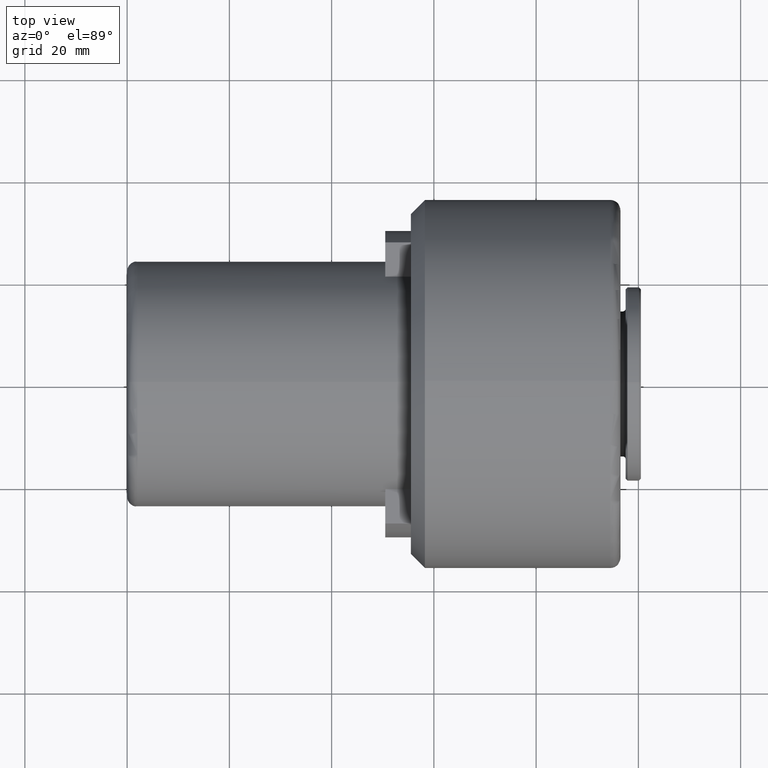
[diagram: clean part render]
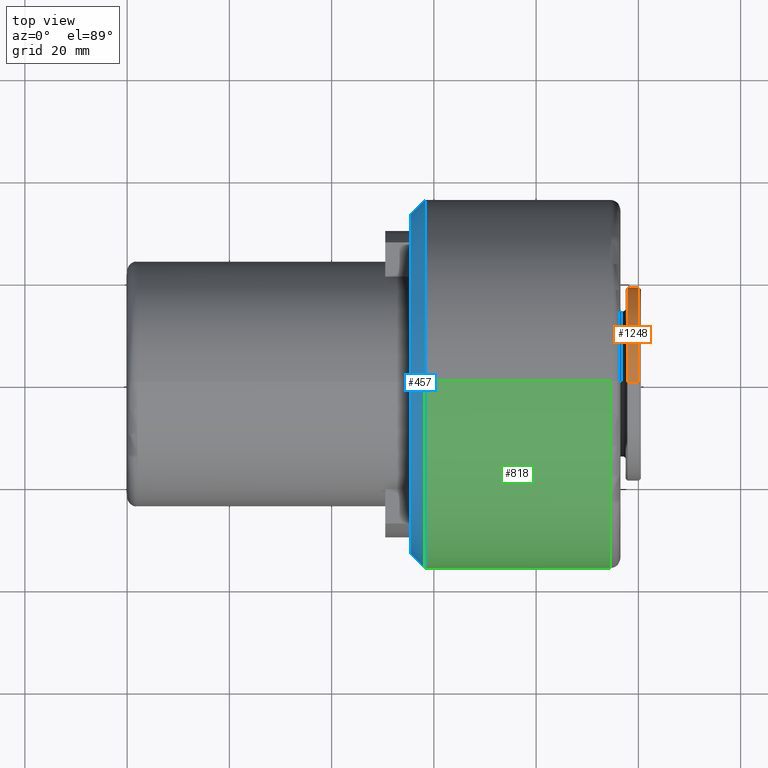
[diagram: same view with three faces highlighted in distinct colors, each labeled with its STEP entity id]
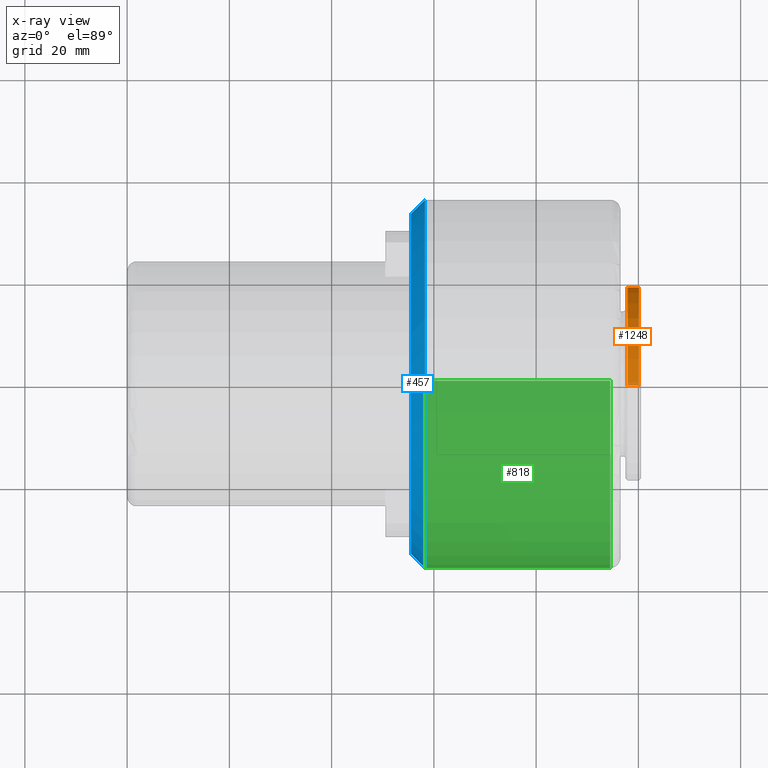
[diagram: x-ray of the same camera — body ghosted, the three highlighted faces saturated]
A machine part, top view with three faces highlighted in distinct colors.
The next image is the same camera in x-ray (body ghosted, the three faces saturated) — at least one of them is partly hidden behind the body in this view.
Their STEP definitions:

[orange] entity #1248 — the highlighted cylindrical surface (partial cylindrical patch) has radius 19 mm, axis along (-1, 0, 0).
#45 = VECTOR ( 'NONE', #300, 1000.000000000000000 ) ;
#82 = DIRECTION ( 'NONE',  ( 0.0000000000000000000, 0.0000000000000000000, 1.000000000000000000 ) ) ;
#91 = CARTESIAN_POINT ( 'NONE',  ( 97.89999999999999100, 0.0000000000000000000, 0.0000000000000000000 ) ) ;
#119 = AXIS2_PLACEMENT_3D ( 'NONE', #242, #987, #357 ) ;
#176 = AXIS2_PLACEMENT_3D ( 'NONE', #1055, #1064, #82 ) ;
#212 = DIRECTION ( 'NONE',  ( 0.0000000000000000000, 0.0000000000000000000, -1.000000000000000000 ) ) ;
#242 = CARTESIAN_POINT ( 'NONE',  ( 100.0999999999999900, 0.0000000000000000000, 0.0000000000000000000 ) ) ;
#285 = CARTESIAN_POINT ( 'NONE',  ( 100.0999999999999900, 0.0000000000000000000, 19.00000000000000000 ) ) ;
#300 = DIRECTION ( 'NONE',  ( -1.000000000000000000, 0.0000000000000000000, 0.0000000000000000000 ) ) ;
#301 = VERTEX_POINT ( 'NONE', #615 ) ;
#346 = ORIENTED_EDGE ( 'NONE', *, *, #403, .T. ) ;
#347 = LINE ( 'NONE', #1159, #45 ) ;
#357 = DIRECTION ( 'NONE',  ( 0.0000000000000000000, 0.0000000000000000000, 1.000000000000000000 ) ) ;
#359 = EDGE_CURVE ( 'NONE', #1289, #1183, #621, .T. ) ;
#403 = EDGE_CURVE ( 'NONE', #301, #1042, #862, .T. ) ;
#477 = EDGE_LOOP ( 'NONE', ( #346, #1263, #606, #1254 ) ) ;
#525 = CARTESIAN_POINT ( 'NONE',  ( 97.89999999999999100, 2.326828918379970200E-015, -18.99999999999998900 ) ) ;
#532 = EDGE_CURVE ( 'NONE', #1042, #1183, #347, .T. ) ;
#576 = VECTOR ( 'NONE', #1223, 1000.000000000000000 ) ;
#606 = ORIENTED_EDGE ( 'NONE', *, *, #359, .F. ) ;
#615 = CARTESIAN_POINT ( 'NONE',  ( 100.0999999999999900, 0.0000000000000000000, 19.00000000000000000 ) ) ;
#621 = CIRCLE ( 'NONE', #1017, 18.99999999999998900 ) ;
#679 = CYLINDRICAL_SURFACE ( 'NONE', #176, 19.00000000000000000 ) ;
#721 = FACE_OUTER_BOUND ( 'NONE', #477, .T. ) ;
#849 = DIRECTION ( 'NONE',  ( -1.000000000000000000, -0.0000000000000000000, -0.0000000000000000000 ) ) ;
#862 = CIRCLE ( 'NONE', #119, 19.00000000000000000 ) ;
#875 = LINE ( 'NONE', #285, #576 ) ;
#902 = CARTESIAN_POINT ( 'NONE',  ( 100.0999999999999900, 2.326828918379971000E-015, -19.00000000000000000 ) ) ;
#987 = DIRECTION ( 'NONE',  ( -1.000000000000000000, 0.0000000000000000000, 0.0000000000000000000 ) ) ;
#1017 = AXIS2_PLACEMENT_3D ( 'NONE', #91, #849, #212 ) ;
#1042 = VERTEX_POINT ( 'NONE', #902 ) ;
#1055 = CARTESIAN_POINT ( 'NONE',  ( 100.0999999999999900, 0.0000000000000000000, 0.0000000000000000000 ) ) ;
#1064 = DIRECTION ( 'NONE',  ( -1.000000000000000000, 0.0000000000000000000, 0.0000000000000000000 ) ) ;
#1097 = EDGE_CURVE ( 'NONE', #301, #1289, #875, .T. ) ;
#1159 = CARTESIAN_POINT ( 'NONE',  ( 100.0999999999999900, 2.326828918379971000E-015, -19.00000000000000000 ) ) ;
#1163 = CARTESIAN_POINT ( 'NONE',  ( 97.89999999999999100, 0.0000000000000000000, 18.99999999999998900 ) ) ;
#1183 = VERTEX_POINT ( 'NONE', #525 ) ;
#1223 = DIRECTION ( 'NONE',  ( -1.000000000000000000, 0.0000000000000000000, 0.0000000000000000000 ) ) ;
#1248 = ADVANCED_FACE ( 'NONE', ( #721 ), #679, .T. ) ;
#1254 = ORIENTED_EDGE ( 'NONE', *, *, #1097, .F. ) ;
#1263 = ORIENTED_EDGE ( 'NONE', *, *, #532, .T. ) ;
#1289 = VERTEX_POINT ( 'NONE', #1163 ) ;

[blue] entity #457 — the highlighted conical surface has half-angle 45 deg.
#4 = EDGE_CURVE ( 'NONE', #268, #694, #1024, .T. ) ;
#18 = FACE_OUTER_BOUND ( 'NONE', #236, .T. ) ;
#30 = VERTEX_POINT ( 'NONE', #986 ) ;
#108 = DIRECTION ( 'NONE',  ( -1.000000000000000000, -0.0000000000000000000, -1.043442692316876300E-016 ) ) ;
#139 = EDGE_CURVE ( 'NONE', #352, #30, #917, .T. ) ;
#177 = CIRCLE ( 'NONE', #935, 36.00000000000002800 ) ;
#186 = DIRECTION ( 'NONE',  ( 1.927470528863117600E-016, 0.0000000000000000000, -1.000000000000000000 ) ) ;
#188 = CARTESIAN_POINT ( 'NONE',  ( 58.25000000000001400, -36.00000000000001400, 4.408728476930473200E-015 ) ) ;
#202 = ORIENTED_EDGE ( 'NONE', *, *, #676, .F. ) ;
#229 = DIRECTION ( 'NONE',  ( 0.0000000000000000000, 1.000000000000000000, 0.0000000000000000000 ) ) ;
#236 = EDGE_LOOP ( 'NONE', ( #1318, #1180, #863, #391, #202 ) ) ;
#248 = DIRECTION ( 'NONE',  ( 0.0000000000000000000, 1.000000000000000000, 0.0000000000000000000 ) ) ;
#268 = VERTEX_POINT ( 'NONE', #1346 ) ;
#352 = VERTEX_POINT ( 'NONE', #421 ) ;
#360 = DIRECTION ( 'NONE',  ( 0.7071067811865485700, -0.7071067811865465700, 8.659560562354924200E-017 ) ) ;
#391 = ORIENTED_EDGE ( 'NONE', *, *, #139, .T. ) ;
#421 = CARTESIAN_POINT ( 'NONE',  ( 58.25000000000000700, 0.0000000000000000000, 36.00000000000002800 ) ) ;
#444 = VECTOR ( 'NONE', #1081, 1000.000000000000000 ) ;
#451 = CARTESIAN_POINT ( 'NONE',  ( 55.49999999999999300, -33.24999999999999300, 4.240339542047711600E-015 ) ) ;
#457 = ADVANCED_FACE ( 'NONE', ( #18 ), #527, .T. ) ;
#465 = AXIS2_PLACEMENT_3D ( 'NONE', #642, #747, #229 ) ;
#467 = EDGE_CURVE ( 'NONE', #694, #517, #1082, .T. ) ;
#517 = VERTEX_POINT ( 'NONE', #188 ) ;
#518 = AXIS2_PLACEMENT_3D ( 'NONE', #766, #108, #186 ) ;
#527 = CONICAL_SURFACE ( 'NONE', #1292, 36.00000000000002100, 0.7853981633974470600 ) ;
#546 = DIRECTION ( 'NONE',  ( -1.000000000000000000, -0.0000000000000000000, -1.043442692316876300E-016 ) ) ;
#579 = CARTESIAN_POINT ( 'NONE',  ( 58.25000000000002100, 0.0000000000000000000, 0.0000000000000000000 ) ) ;
#642 = CARTESIAN_POINT ( 'NONE',  ( 55.49999999999999300, -2.650271977186816100E-016, 0.0000000000000000000 ) ) ;
#676 = EDGE_CURVE ( 'NONE', #268, #30, #1278, .T. ) ;
#694 = VERTEX_POINT ( 'NONE', #451 ) ;
#747 = DIRECTION ( 'NONE',  ( 1.000000000000000000, 9.637352644315590300E-017, -0.0000000000000000000 ) ) ;
#766 = CARTESIAN_POINT ( 'NONE',  ( 58.25000000000001400, 0.0000000000000000000, 2.869467403871423700E-016 ) ) ;
#863 = ORIENTED_EDGE ( 'NONE', *, *, #1244, .T. ) ;
#917 = CIRCLE ( 'NONE', #518, 36.00000000000002800 ) ;
#935 = AXIS2_PLACEMENT_3D ( 'NONE', #1158, #546, #1269 ) ;
#986 = CARTESIAN_POINT ( 'NONE',  ( 58.25000000000001400, 36.00000000000001400, 0.0000000000000000000 ) ) ;
#1024 = CIRCLE ( 'NONE', #465, 33.24999999999999300 ) ;
#1081 = DIRECTION ( 'NONE',  ( 0.7071067811865483500, 0.7071067811865468000, 0.0000000000000000000 ) ) ;
#1082 = LINE ( 'NONE', #1100, #1358 ) ;
#1100 = CARTESIAN_POINT ( 'NONE',  ( 58.25000000000002100, -36.00000000000002100, 4.408728476930474000E-015 ) ) ;
#1158 = CARTESIAN_POINT ( 'NONE',  ( 58.25000000000001400, 0.0000000000000000000, 2.869467403871423700E-016 ) ) ;
#1180 = ORIENTED_EDGE ( 'NONE', *, *, #467, .T. ) ;
#1195 = DIRECTION ( 'NONE',  ( 1.000000000000000000, 9.637352644315590300E-017, -0.0000000000000000000 ) ) ;
#1244 = EDGE_CURVE ( 'NONE', #517, #352, #177, .T. ) ;
#1269 = DIRECTION ( 'NONE',  ( 1.927470528863117600E-016, 0.0000000000000000000, -1.000000000000000000 ) ) ;
#1278 = LINE ( 'NONE', #1389, #444 ) ;
#1292 = AXIS2_PLACEMENT_3D ( 'NONE', #579, #1195, #248 ) ;
#1318 = ORIENTED_EDGE ( 'NONE', *, *, #4, .T. ) ;
#1346 = CARTESIAN_POINT ( 'NONE',  ( 55.49999999999999300, 33.24999999999999300, 0.0000000000000000000 ) ) ;
#1358 = VECTOR ( 'NONE', #360, 1000.000000000000000 ) ;
#1389 = CARTESIAN_POINT ( 'NONE',  ( 58.25000000000002100, 36.00000000000002100, 0.0000000000000000000 ) ) ;

[green] entity #818 — the highlighted cylindrical surface (partial cylindrical patch) has radius 36 mm, axis along (-1, 0, 0).
#23 = AXIS2_PLACEMENT_3D ( 'NONE', #1330, #696, #36 ) ;
#36 = DIRECTION ( 'NONE',  ( 1.927470528863117600E-016, 0.0000000000000000000, -1.000000000000000000 ) ) ;
#79 = DIRECTION ( 'NONE',  ( -1.000000000000000000, 0.0000000000000000000, 0.0000000000000000000 ) ) ;
#81 = ORIENTED_EDGE ( 'NONE', *, *, #561, .T. ) ;
#177 = CIRCLE ( 'NONE', #935, 36.00000000000002800 ) ;
#187 = DIRECTION ( 'NONE',  ( 0.0000000000000000000, 0.0000000000000000000, 1.000000000000000000 ) ) ;
#188 = CARTESIAN_POINT ( 'NONE',  ( 58.25000000000001400, -36.00000000000001400, 4.408728476930473200E-015 ) ) ;
#197 = CARTESIAN_POINT ( 'NONE',  ( 58.25000000000002100, 4.408728476930474800E-015, -36.00000000000002800 ) ) ;
#241 = VECTOR ( 'NONE', #825, 1000.000000000000000 ) ;
#314 = VERTEX_POINT ( 'NONE', #197 ) ;
#352 = VERTEX_POINT ( 'NONE', #421 ) ;
#396 = AXIS2_PLACEMENT_3D ( 'NONE', #740, #79, #841 ) ;
#421 = CARTESIAN_POINT ( 'NONE',  ( 58.25000000000000700, 0.0000000000000000000, 36.00000000000002800 ) ) ;
#517 = VERTEX_POINT ( 'NONE', #188 ) ;
#521 = CARTESIAN_POINT ( 'NONE',  ( 73.59999999999999400, 4.408728476930472400E-015, -36.00000000000001400 ) ) ;
#546 = DIRECTION ( 'NONE',  ( -1.000000000000000000, -0.0000000000000000000, -1.043442692316876300E-016 ) ) ;
#561 = EDGE_CURVE ( 'NONE', #1397, #352, #874, .T. ) ;
#569 = ORIENTED_EDGE ( 'NONE', *, *, #1168, .F. ) ;
#571 = EDGE_CURVE ( 'NONE', #1093, #1397, #575, .T. ) ;
#575 = CIRCLE ( 'NONE', #396, 36.00000000000001400 ) ;
#696 = DIRECTION ( 'NONE',  ( -1.000000000000000000, -0.0000000000000000000, -1.043442692316876300E-016 ) ) ;
#740 = CARTESIAN_POINT ( 'NONE',  ( 94.50000000000000000, 0.0000000000000000000, 0.0000000000000000000 ) ) ;
#745 = ORIENTED_EDGE ( 'NONE', *, *, #1028, .F. ) ;
#795 = FACE_OUTER_BOUND ( 'NONE', #1110, .T. ) ;
#818 = ADVANCED_FACE ( 'NONE', ( #795 ), #1327, .T. ) ;
#825 = DIRECTION ( 'NONE',  ( -1.000000000000000000, 0.0000000000000000000, 0.0000000000000000000 ) ) ;
#834 = CARTESIAN_POINT ( 'NONE',  ( 73.59999999999999400, 0.0000000000000000000, 36.00000000000001400 ) ) ;
#841 = DIRECTION ( 'NONE',  ( 0.0000000000000000000, 0.0000000000000000000, 1.000000000000000000 ) ) ;
#851 = VECTOR ( 'NONE', #938, 1000.000000000000000 ) ;
#874 = LINE ( 'NONE', #834, #851 ) ;
#935 = AXIS2_PLACEMENT_3D ( 'NONE', #1158, #546, #1269 ) ;
#938 = DIRECTION ( 'NONE',  ( -1.000000000000000000, 0.0000000000000000000, 0.0000000000000000000 ) ) ;
#970 = ORIENTED_EDGE ( 'NONE', *, *, #571, .T. ) ;
#1002 = ORIENTED_EDGE ( 'NONE', *, *, #1244, .F. ) ;
#1028 = EDGE_CURVE ( 'NONE', #314, #517, #1185, .T. ) ;
#1040 = DIRECTION ( 'NONE',  ( -1.000000000000000000, 0.0000000000000000000, 0.0000000000000000000 ) ) ;
#1093 = VERTEX_POINT ( 'NONE', #1226 ) ;
#1095 = LINE ( 'NONE', #521, #241 ) ;
#1110 = EDGE_LOOP ( 'NONE', ( #569, #970, #81, #1002, #745 ) ) ;
#1126 = CARTESIAN_POINT ( 'NONE',  ( 94.50000000000000000, 0.0000000000000000000, 36.00000000000001400 ) ) ;
#1158 = CARTESIAN_POINT ( 'NONE',  ( 58.25000000000001400, 0.0000000000000000000, 2.869467403871423700E-016 ) ) ;
#1168 = EDGE_CURVE ( 'NONE', #1093, #314, #1095, .T. ) ;
#1185 = CIRCLE ( 'NONE', #23, 36.00000000000002800 ) ;
#1226 = CARTESIAN_POINT ( 'NONE',  ( 94.50000000000000000, 4.408728476930472400E-015, -36.00000000000001400 ) ) ;
#1244 = EDGE_CURVE ( 'NONE', #517, #352, #177, .T. ) ;
#1269 = DIRECTION ( 'NONE',  ( 1.927470528863117600E-016, 0.0000000000000000000, -1.000000000000000000 ) ) ;
#1303 = AXIS2_PLACEMENT_3D ( 'NONE', #1356, #1040, #187 ) ;
#1327 = CYLINDRICAL_SURFACE ( 'NONE', #1303, 36.00000000000001400 ) ;
#1330 = CARTESIAN_POINT ( 'NONE',  ( 58.25000000000001400, 0.0000000000000000000, 2.869467403871423700E-016 ) ) ;
#1356 = CARTESIAN_POINT ( 'NONE',  ( 73.59999999999999400, 0.0000000000000000000, 0.0000000000000000000 ) ) ;
#1397 = VERTEX_POINT ( 'NONE', #1126 ) ;